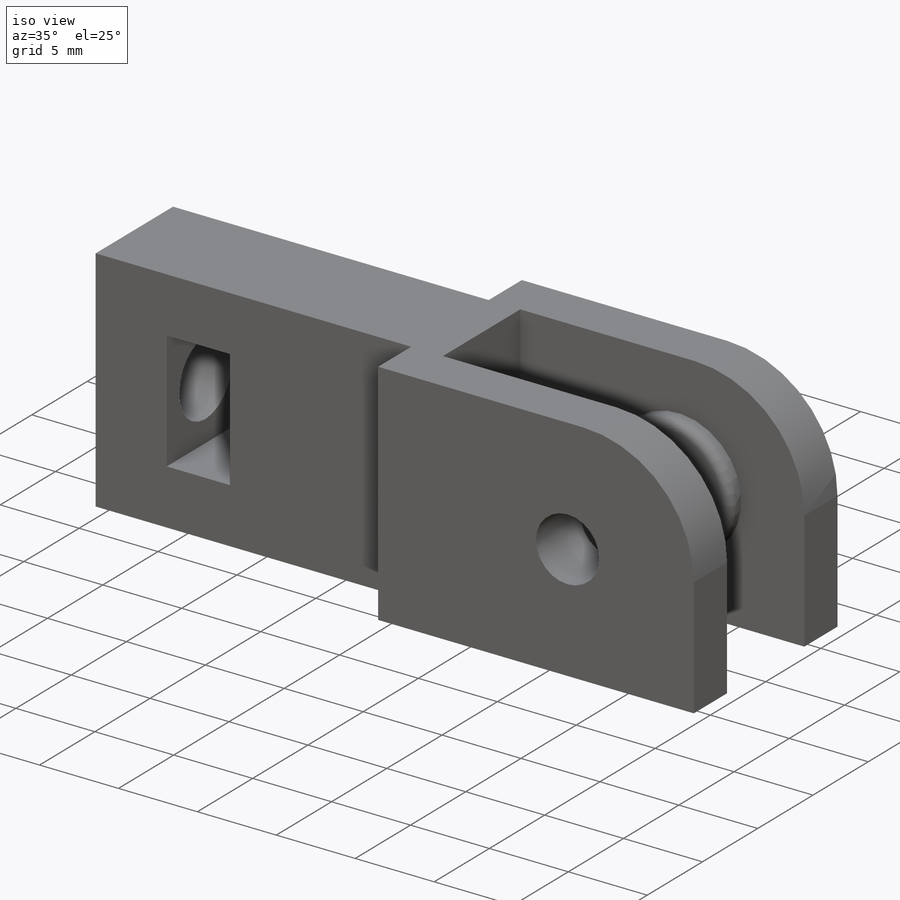
[diagram: iso view]
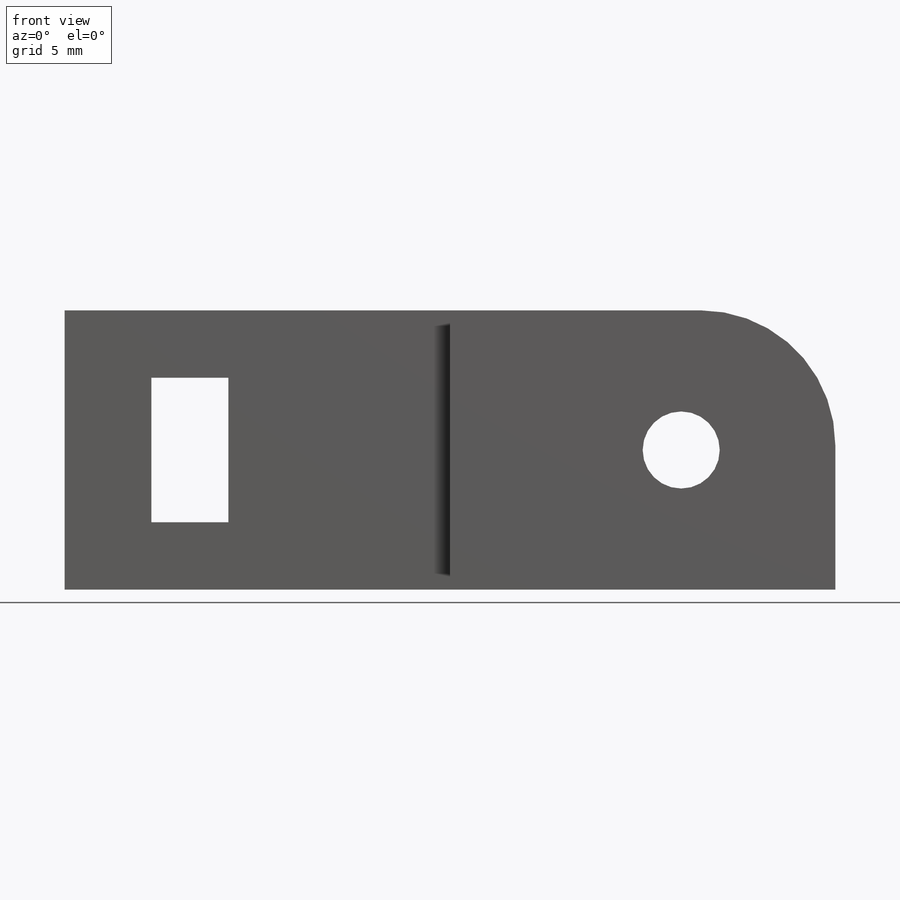
[diagram: front view]
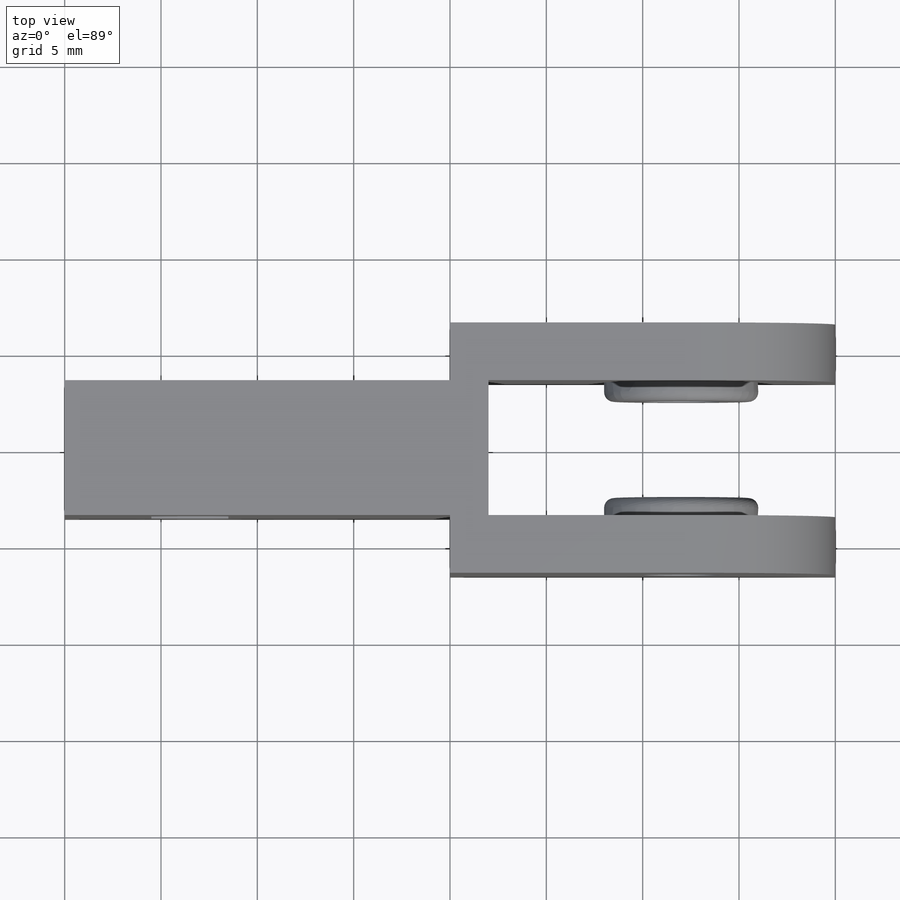
[diagram: top view]
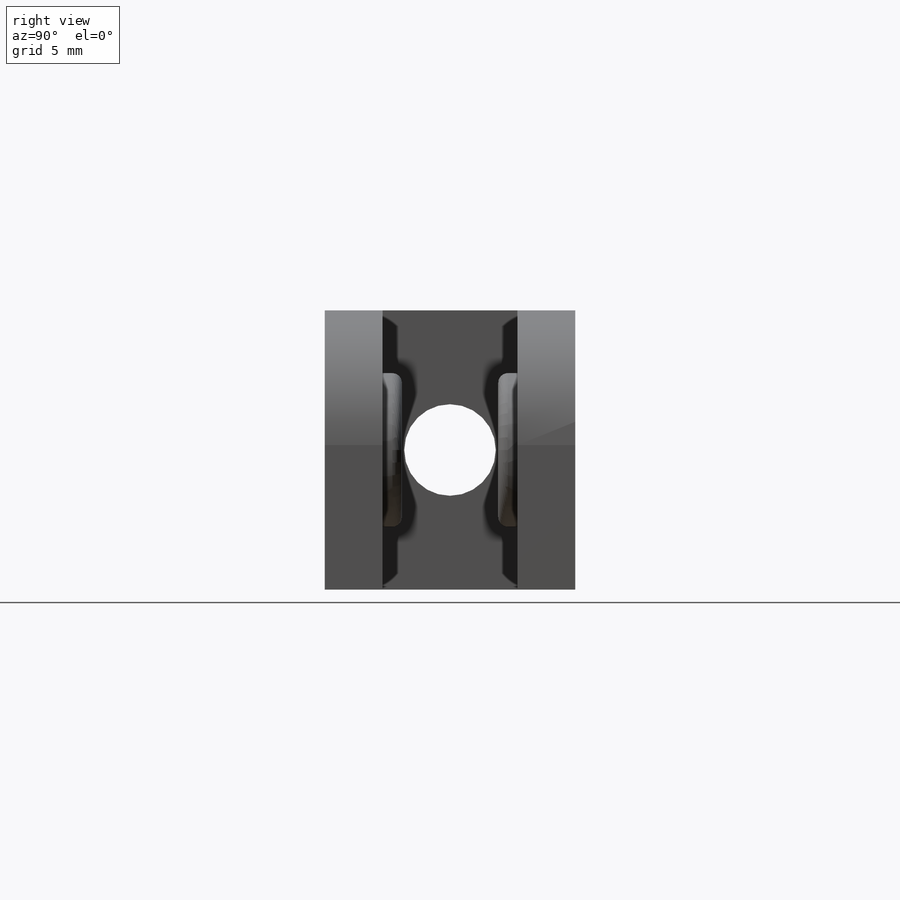
[diagram: right view]
SOLIDWORKS PART (.sldprt)
format: sldprt  version: not decoded by parser v0  size: 245,760 bytes
history: native  units: mm
features: sketch x5, plane x3, cut_extrude x3, extrude x2, fillet x2, material x1, mirror x1 (+10 scaffold rows collapsed)
feature tree (27):
  scaffold x10  (default folders/planes/origin — collapsed)
  material  "Matériau <non spécifié>"
  plane  "Plan de face"
  plane  "Plan de dessus"
  plane  "Plan de droite"
  sketch  "Esquisse2"  dims[D1=20.0mm D2=3.0mm D3=3.0mm D4=3.5mm D5=18.0mm]
  extrude  "Boss.-Extru.1"  Depth=14.5mm
  fillet  "Congé5"  Radius=7mm
  sketch  "Esquisse3"  dims[D1=8.0mm D2=8.0mm]
  extrude  "Boss.-Extru.2"  Depth=1mm
  fillet  "Congé2"  Radius=0.5mm
  sketch  "Esquisse4"  dims[D1=4.0mm]
  cut_extrude  "Enlèv. mat.-Extru.1"  [1 undecoded]
  mirror  "Symétrie1"
  sketch  "Esquisse5"  dims[D1=4.75mm D2=7.5mm]
  cut_extrude  "Enlèv. mat.-Extru.2"  [1 undecoded]
  sketch  "Esquisse6"  dims[D1=7.5mm D2=4.0mm D3=6.5mm]
  cut_extrude  "Enlèv. mat.-Extru.3"  [1 undecoded]
decode coverage: 9 of 13 modeling features carry decoded parameters
note: 3 parameter values undecoded
summary: no parameter record found for 3 features
note: suppression state not decoded; provenance and decode notes live in map.json
